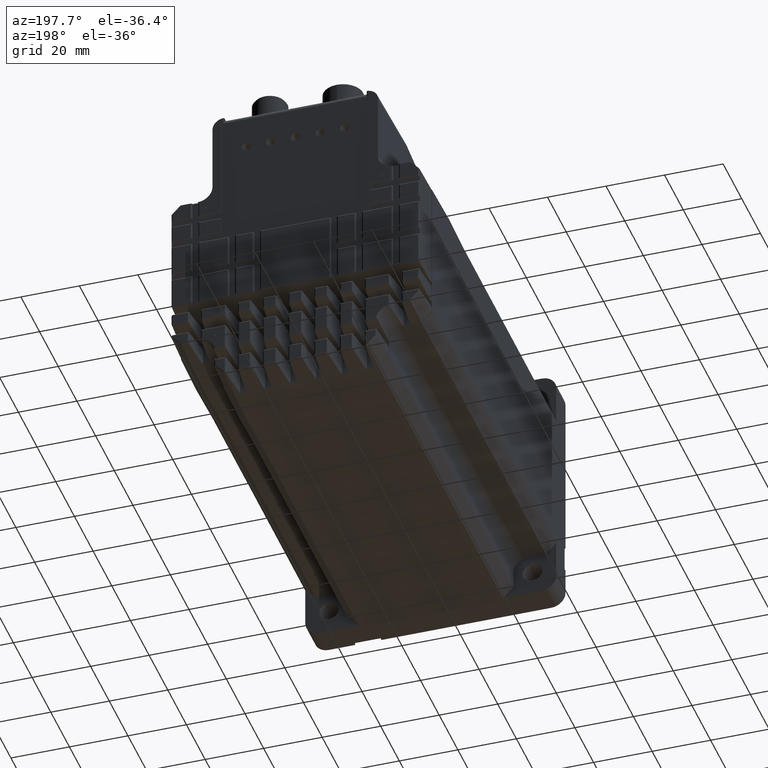
[diagram: clean part render]
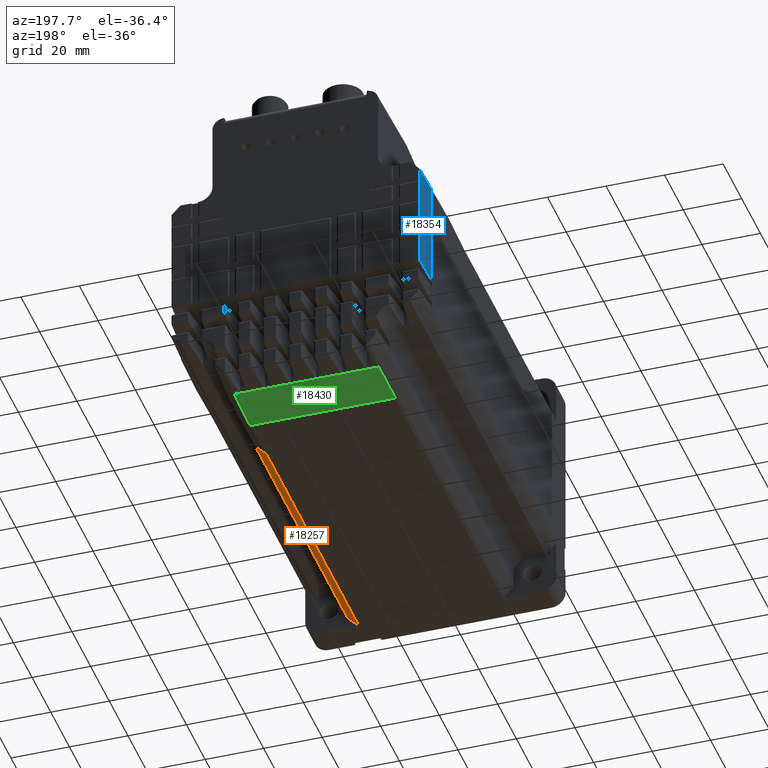
[diagram: same view with three faces highlighted in distinct colors, each labeled with its STEP entity id]
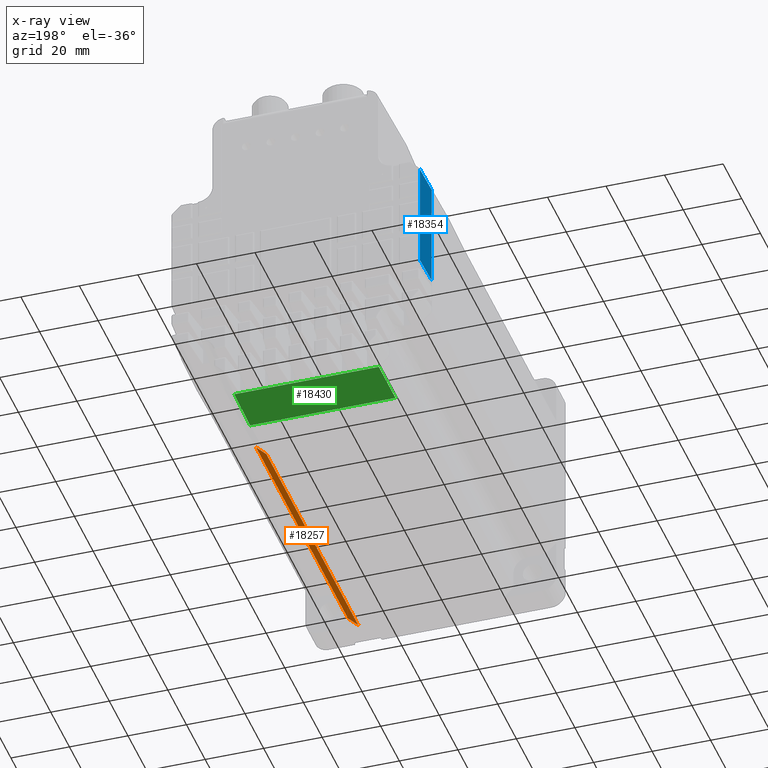
[diagram: x-ray of the same camera — body ghosted, the three highlighted faces saturated]
A machine part, auxiliary view with three faces highlighted in distinct colors.
The next image is the same camera in x-ray (body ghosted, the three faces saturated) — at least one of them is partly hidden behind the body in this view.
Their STEP definitions:

[orange] entity #18257 — the highlighted planar face has unit normal (0.7071, 0, -0.7071).
#1714=ORIENTED_EDGE('',*,*,#6343,.T.);
#1715=ORIENTED_EDGE('',*,*,#6426,.T.);
#1716=ORIENTED_EDGE('',*,*,#6354,.F.);
#1717=ORIENTED_EDGE('',*,*,#6427,.F.);
#6343=EDGE_CURVE('',#8706,#8705,#10195,.T.);
#6354=EDGE_CURVE('',#8716,#8717,#10206,.T.);
#6426=EDGE_CURVE('',#8705,#8717,#10268,.T.);
#6427=EDGE_CURVE('',#8706,#8716,#10269,.T.);
#8705=VERTEX_POINT('',#26509);
#8706=VERTEX_POINT('',#26511);
#8716=VERTEX_POINT('',#26533);
#8717=VERTEX_POINT('',#26534);
#10195=LINE('',#26510,#11585);
#10206=LINE('',#26532,#11596);
#10268=LINE('',#26683,#11658);
#10269=LINE('',#26684,#11659);
#11585=VECTOR('',#21244,1000.);
#11596=VECTOR('',#21257,1000.);
#11658=VECTOR('',#21377,1000.);
#11659=VECTOR('',#21378,1000.);
#12984=EDGE_LOOP('',(#1714,#1715,#1716,#1717));
#14193=FACE_BOUND('',#12984,.T.);
#15394=PLANE('',#19321);
#18257=ADVANCED_FACE('',(#14193),#15394,.T.);
#19321=AXIS2_PLACEMENT_3D('',#26682,#21375,#21376);
#21244=DIRECTION('',(0.,1.,0.));
#21257=DIRECTION('',(0.,1.,0.));
#21375=DIRECTION('',(0.707106781186547,0.,-0.707106781186548));
#21376=DIRECTION('',(-0.707106781186548,0.,-0.707106781186547));
#21377=DIRECTION('',(0.707106781186548,0.,0.707106781186548));
#21378=DIRECTION('',(0.707106781186548,0.,0.707106781186547));
#26509=CARTESIAN_POINT('',(71.665625,108.5,21.16375));
#26510=CARTESIAN_POINT('',(71.665625,-127.060361018707,21.16375));
#26511=CARTESIAN_POINT('',(71.665625,9.91,21.16375));
#26532=CARTESIAN_POINT('',(75.265625,-127.060361018707,24.76375));
#26533=CARTESIAN_POINT('',(75.265625,9.91,24.76375));
#26534=CARTESIAN_POINT('',(75.265625,108.5,24.76375));
#26682=CARTESIAN_POINT('',(75.265625,-127.060361018707,24.76375));
#26683=CARTESIAN_POINT('',(71.665625,108.5,21.16375));
#26684=CARTESIAN_POINT('',(75.265625,9.91,24.76375));

[blue] entity #18354 — the highlighted planar face has unit normal (-0.9994, 0.0349, -0).
#262=ELLIPSE('',#19526,0.0200121909677067,0.02);
#263=ELLIPSE('',#19527,0.0200121908859764,0.02);
#264=ELLIPSE('',#19528,0.0200121908859764,0.02);
#265=ELLIPSE('',#19529,0.500304772149411,0.5);
#266=ELLIPSE('',#19530,0.500304772149411,0.5);
#267=ELLIPSE('',#19531,0.500304772149411,0.5);
#2312=ORIENTED_EDGE('',*,*,#6781,.T.);
#2313=ORIENTED_EDGE('',*,*,#6782,.T.);
#2314=ORIENTED_EDGE('',*,*,#6783,.T.);
#2315=ORIENTED_EDGE('',*,*,#6784,.T.);
#2316=ORIENTED_EDGE('',*,*,#6785,.T.);
#2317=ORIENTED_EDGE('',*,*,#6786,.T.);
#2318=ORIENTED_EDGE('',*,*,#6787,.T.);
#2319=ORIENTED_EDGE('',*,*,#6788,.T.);
#2320=ORIENTED_EDGE('',*,*,#6789,.T.);
#2321=ORIENTED_EDGE('',*,*,#6790,.T.);
#2322=ORIENTED_EDGE('',*,*,#6791,.T.);
#2323=ORIENTED_EDGE('',*,*,#6792,.T.);
#2324=ORIENTED_EDGE('',*,*,#6793,.T.);
#2325=ORIENTED_EDGE('',*,*,#6794,.T.);
#2326=ORIENTED_EDGE('',*,*,#6795,.T.);
#2327=ORIENTED_EDGE('',*,*,#6796,.T.);
#6781=EDGE_CURVE('',#9039,#9040,#10510,.F.);
#6782=EDGE_CURVE('',#9040,#9041,#10511,.F.);
#6783=EDGE_CURVE('',#9041,#9042,#10512,.T.);
#6784=EDGE_CURVE('',#9042,#9043,#10513,.T.);
#6785=EDGE_CURVE('',#9043,#9044,#10514,.F.);
#6786=EDGE_CURVE('',#9044,#9045,#262,.T.);
#6787=EDGE_CURVE('',#9045,#9046,#10515,.T.);
#6788=EDGE_CURVE('',#9046,#9047,#263,.T.);
#6789=EDGE_CURVE('',#9047,#9048,#10516,.F.);
#6790=EDGE_CURVE('',#9048,#9049,#264,.T.);
#6791=EDGE_CURVE('',#9049,#9050,#10517,.T.);
#6792=EDGE_CURVE('',#9050,#9051,#265,.T.);
#6793=EDGE_CURVE('',#9051,#9052,#10518,.F.);
#6794=EDGE_CURVE('',#9052,#9053,#266,.T.);
#6795=EDGE_CURVE('',#9053,#9054,#10519,.T.);
#6796=EDGE_CURVE('',#9054,#9039,#267,.T.);
#9039=VERTEX_POINT('',#27424);
#9040=VERTEX_POINT('',#27425);
#9041=VERTEX_POINT('',#27427);
#9042=VERTEX_POINT('',#27429);
#9043=VERTEX_POINT('',#27431);
#9044=VERTEX_POINT('',#27433);
#9045=VERTEX_POINT('',#27435);
#9046=VERTEX_POINT('',#27437);
#9047=VERTEX_POINT('',#27439);
#9048=VERTEX_POINT('',#27441);
#9049=VERTEX_POINT('',#27443);
#9050=VERTEX_POINT('',#27445);
#9051=VERTEX_POINT('',#27447);
#9052=VERTEX_POINT('',#27449);
#9053=VERTEX_POINT('',#27451);
#9054=VERTEX_POINT('',#27453);
#10510=LINE('',#27423,#11900);
#10511=LINE('',#27426,#11901);
#10512=LINE('',#27428,#11902);
#10513=LINE('',#27430,#11903);
#10514=LINE('',#27432,#11904);
#10515=LINE('',#27436,#11905);
#10516=LINE('',#27440,#11906);
#10517=LINE('',#27444,#11907);
#10518=LINE('',#27448,#11908);
#10519=LINE('',#27452,#11909);
#11900=VECTOR('',#22027,1000.);
#11901=VECTOR('',#22028,1000.);
#11902=VECTOR('',#22029,1000.);
#11903=VECTOR('',#22030,1000.);
#11904=VECTOR('',#22031,1000.);
#11905=VECTOR('',#22034,1000.);
#11906=VECTOR('',#22037,1000.);
#11907=VECTOR('',#22040,1000.);
#11908=VECTOR('',#22043,1000.);
#11909=VECTOR('',#22046,1000.);
#13131=EDGE_LOOP('',(#2312,#2313,#2314,#2315,#2316,#2317,#2318,#2319,#2320,
#2321,#2322,#2323,#2324,#2325,#2326,#2327));
#14340=FACE_BOUND('',#13131,.T.);
#15463=PLANE('',#19525);
#18354=ADVANCED_FACE('',(#14340),#15463,.T.);
#19525=AXIS2_PLACEMENT_3D('',#27422,#22025,#22026);
#19526=AXIS2_PLACEMENT_3D('',#27434,#22032,#22033);
#19527=AXIS2_PLACEMENT_3D('',#27438,#22035,#22036);
#19528=AXIS2_PLACEMENT_3D('',#27442,#22038,#22039);
#19529=AXIS2_PLACEMENT_3D('',#27446,#22041,#22042);
#19530=AXIS2_PLACEMENT_3D('',#27450,#22044,#22045);
#19531=AXIS2_PLACEMENT_3D('',#27454,#22047,#22048);
#22025=DIRECTION('',(-0.999390827019096,0.034899496702501,-2.35215333096873E-17));
#22026=DIRECTION('',(-0.034899496702501,-0.999390827019096,0.));
#22027=DIRECTION('',(-2.35358707262157E-17,-8.49919560250375E-35,1.));
#22028=DIRECTION('',(0.0348782627423746,0.998782765958718,0.0348782627423763));
#22029=DIRECTION('',(-8.06848128361306E-17,-1.6365315811102E-15,1.));
#22030=DIRECTION('',(0.0348782627423746,0.998782765958718,0.0348782627423809));
#22031=DIRECTION('',(-2.35358707262157E-17,-8.49919560250375E-35,1.));
#22032=DIRECTION('',(-0.999390827019096,0.034899496702501,-2.35215333096873E-17));
#22033=DIRECTION('',(0.0348993796806763,0.999387475952485,-0.00258963457388874));
#22034=DIRECTION('',(8.06848128361306E-17,1.6365315811102E-15,-1.));
#22035=DIRECTION('',(-0.999390827019096,0.034899496702501,-2.35215333096873E-17));
#22036=DIRECTION('',(-0.034899496702501,-0.999390827019096,-1.5940885751764E-13));
#22037=DIRECTION('',(-2.35358707262157E-17,-8.49919560250375E-35,1.));
#22038=DIRECTION('',(-0.999390827019096,0.034899496702501,-2.35215333096873E-17));
#22039=DIRECTION('',(0.034899496702501,0.999390827019096,1.5940885751764E-13));
#22040=DIRECTION('',(8.06848128361306E-17,1.6365315811102E-15,-1.));
#22041=DIRECTION('',(-0.999390827019096,0.034899496702501,-2.35215333096873E-17));
#22042=DIRECTION('',(-0.034899496702501,-0.999390827019096,-5.25102118954805E-14));
#22043=DIRECTION('',(-2.35358707262157E-17,-8.49919560250375E-35,1.));
#22044=DIRECTION('',(-0.999390827019096,0.034899496702501,-2.35215333096873E-17));
#22045=DIRECTION('',(0.034899496702501,0.999390827019096,5.25102118954805E-14));
#22046=DIRECTION('',(8.06848128361306E-17,1.6365315811102E-15,-1.));
#22047=DIRECTION('',(-0.999390827019096,0.034899496702501,-2.35215333096873E-17));
#22048=DIRECTION('',(-0.034899496702501,-0.999390827019096,-5.25102118954805E-14));
#27422=CARTESIAN_POINT('',(4.165625,84.7500000000001,56.76375));
#27423=CARTESIAN_POINT('',(4.56782320779496,96.2674497483513,56.76375));
#27424=CARTESIAN_POINT('',(4.56782320779496,96.2674497483513,63.0652752633878));
#27425=CARTESIAN_POINT('',(4.56782320779496,96.2674497483513,52.4218400896583));
#27426=CARTESIAN_POINT('',(4.16501712392143,84.7325927066497,52.0190340057848));
#27427=CARTESIAN_POINT('',(4.165625,84.7500000000001,52.0196418818633));
#27428=CARTESIAN_POINT('',(4.16562500000001,84.7500000000001,30.8524878730217));
#27429=CARTESIAN_POINT('',(4.165625,84.75,88.7223286437619));
#27430=CARTESIAN_POINT('',(4.12674760601705,83.6366970989246,88.6834512497789));
#27431=CARTESIAN_POINT('',(4.5684972488392,96.2867517584172,89.1252008926011));
#27432=CARTESIAN_POINT('',(4.5684972488392,96.2867517584172,56.76375));
#27433=CARTESIAN_POINT('',(4.5684972488392,96.2867517584172,86.8975321119653));
#27434=CARTESIAN_POINT('',(4.56779883344936,96.2667517584172,86.8975321750862));
#27435=CARTESIAN_POINT('',(4.56721384915419,96.2499999999741,86.8866061769746));
#27436=CARTESIAN_POINT('',(4.56721384915509,96.25,97.36375));
#27437=CARTESIAN_POINT('',(4.56721384915509,96.25,83.9083615712283));
#27438=CARTESIAN_POINT('',(4.56779883344936,96.2667517584172,83.8974355202523));
#27439=CARTESIAN_POINT('',(4.5684972488392,96.2867517584172,83.8974355202523));
#27440=CARTESIAN_POINT('',(4.5684972488392,96.2867517584172,56.76375));
#27441=CARTESIAN_POINT('',(4.5684972488392,96.2867517584172,78.7074355202523));
#27442=CARTESIAN_POINT('',(4.56779883344936,96.2667517584172,78.7074355202523));
#27443=CARTESIAN_POINT('',(4.56721384915419,96.2499999999741,78.6965094693159));
#27444=CARTESIAN_POINT('',(4.56721384915509,96.25,97.36375));
#27445=CARTESIAN_POINT('',(4.56721384915509,96.25,76.2074355202523));
#27446=CARTESIAN_POINT('',(4.56721384915509,96.25,75.7074355202523));
#27447=CARTESIAN_POINT('',(4.56782320779496,96.2674497483513,76.2071309337618));
#27448=CARTESIAN_POINT('',(4.56782320779496,96.2674497483513,56.76375));
#27449=CARTESIAN_POINT('',(4.56782320779496,96.2674497483513,65.0658844363687));
#27450=CARTESIAN_POINT('',(4.5672138491551,96.25,65.5655798498783));
#27451=CARTESIAN_POINT('',(4.5672138491551,96.25,65.0655798498783));
#27452=CARTESIAN_POINT('',(4.56721384915509,96.25,97.36375));
#27453=CARTESIAN_POINT('',(4.5672138491551,96.25,63.0655798498783));
#27454=CARTESIAN_POINT('',(4.5672138491551,96.25,62.5655798498783));

[green] entity #18430 — the highlighted planar face has unit normal (-0, 0.0175, -0.9998).
#2961=ORIENTED_EDGE('',*,*,#7297,.T.);
#2962=ORIENTED_EDGE('',*,*,#6866,.F.);
#2963=ORIENTED_EDGE('',*,*,#7333,.F.);
#2964=ORIENTED_EDGE('',*,*,#6542,.F.);
#6542=EDGE_CURVE('',#8849,#8850,#10331,.F.);
#6866=EDGE_CURVE('',#9117,#9118,#10583,.F.);
#7297=EDGE_CURVE('',#8849,#9118,#10883,.T.);
#7333=EDGE_CURVE('',#8850,#9117,#10919,.F.);
#8849=VERTEX_POINT('',#26935);
#8850=VERTEX_POINT('',#26937);
#9117=VERTEX_POINT('',#27609);
#9118=VERTEX_POINT('',#27610);
#10331=LINE('',#26936,#11721);
#10583=LINE('',#27608,#11973);
#10883=LINE('',#28497,#12273);
#10919=LINE('',#28573,#12309);
#11721=VECTOR('',#21650,1000.);
#11973=VECTOR('',#22136,1000.);
#12273=VECTOR('',#22782,1000.);
#12309=VECTOR('',#22846,1000.);
#13232=EDGE_LOOP('',(#2961,#2962,#2963,#2964));
#14441=FACE_BOUND('',#13232,.T.);
#15537=PLANE('',#19730);
#18430=ADVANCED_FACE('',(#14441),#15537,.T.);
#19730=AXIS2_PLACEMENT_3D('',#28572,#22844,#22845);
#21650=DIRECTION('',(-1.,0.,0.));
#22136=DIRECTION('',(1.,2.67823561597106E-30,4.67487765698441E-32));
#22782=DIRECTION('',(0.00722883455980078,0.999821570769975,0.0174519504344241));
#22844=DIRECTION('',(0.,0.0174524064372851,-0.999847695156391));
#22845=DIRECTION('',(0.,0.999847695156391,0.0174524064372851));
#22846=DIRECTION('',(0.00722883455980078,-0.999821570769975,-0.0174519504344241));
#26935=CARTESIAN_POINT('',(22.139097819056,67.25,20.8582863637562));
#26936=CARTESIAN_POINT('',(23.6694568354595,67.25,20.8582863637562));
#26937=CARTESIAN_POINT('',(71.792152180944,67.25,20.8582863637562));
#27608=CARTESIAN_POINT('',(46.965625,84.7500000000001,21.16375));
#27609=CARTESIAN_POINT('',(71.665625,84.7500000000001,21.16375));
#27610=CARTESIAN_POINT('',(22.265625,84.7500000000001,21.16375));
#28497=CARTESIAN_POINT('',(22.2669157244126,84.9285203546932,21.1668660843822));
#28572=CARTESIAN_POINT('',(46.965625,84.7500000000001,21.16375));
#28573=CARTESIAN_POINT('',(71.6643342755874,84.9285203546932,21.1668660843822));